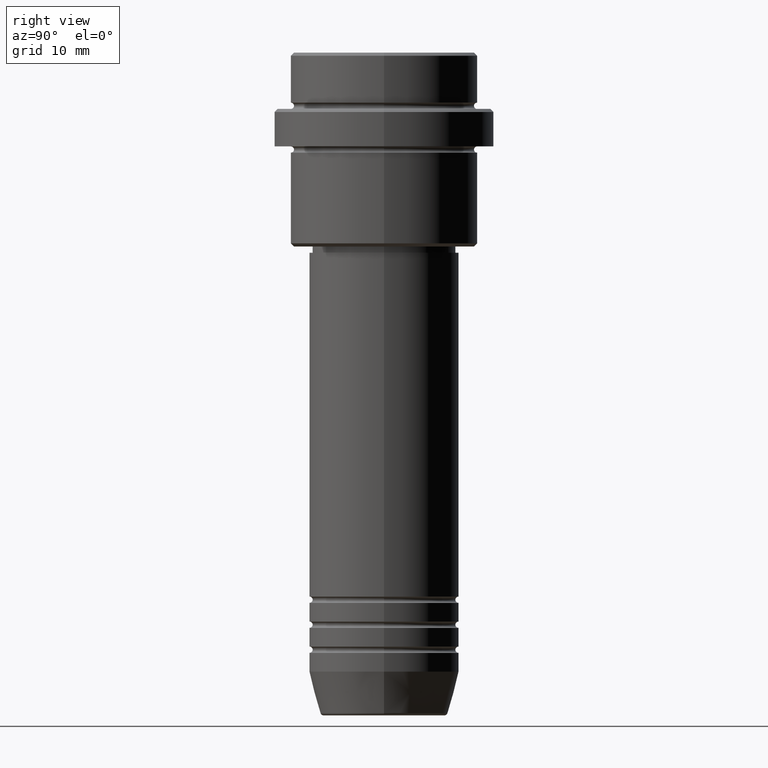
[diagram: clean part render]
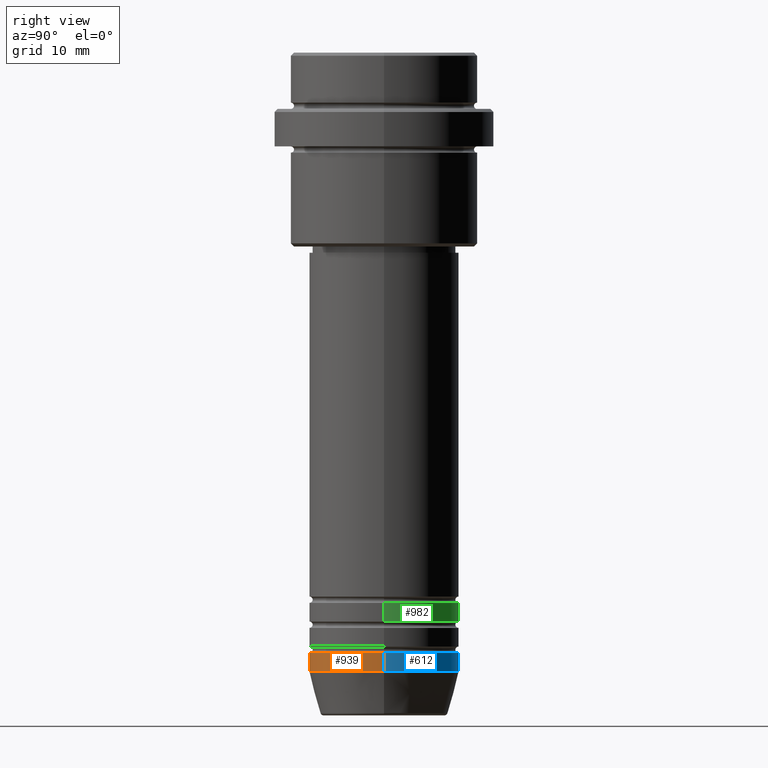
[diagram: same view with three faces highlighted in distinct colors, each labeled with its STEP entity id]
A machine part, right view with three faces highlighted in distinct colors.
Their STEP definitions:

[orange] entity #939 — the highlighted cylindrical surface (partial cylindrical patch) has radius 12 mm, axis along (-0, -0, 1).
#43 = VERTEX_POINT ( 'NONE', #300 ) ;
#52 = EDGE_CURVE ( 'NONE', #1115, #43, #1382, .T. ) ;
#61 = CARTESIAN_POINT ( 'NONE',  ( 12.00000000000000000, 0.000000000000000000, -96.00000000000000000 ) ) ;
#62 = DIRECTION ( 'NONE',  ( -0.000000000000000000, -0.000000000000000000, 1.000000000000000000 ) ) ;
#76 = CIRCLE ( 'NONE', #600, 12.00000000000000000 ) ;
#94 = DIRECTION ( 'NONE',  ( 1.000000000000000000, 0.000000000000000000, 0.000000000000000000 ) ) ;
#97 = CYLINDRICAL_SURFACE ( 'NONE', #147, 12.00000000000000000 ) ;
#137 = CARTESIAN_POINT ( 'NONE',  ( -12.00000000000000000, 1.469576158976823947E-15, -99.00000000000000000 ) ) ;
#147 = AXIS2_PLACEMENT_3D ( 'NONE', #417, #651, #1072 ) ;
#215 = ORIENTED_EDGE ( 'NONE', *, *, #440, .T. ) ;
#264 = ORIENTED_EDGE ( 'NONE', *, *, #1365, .F. ) ;
#288 = CARTESIAN_POINT ( 'NONE',  ( -12.00000000000000000, 1.469576158976823947E-15, -96.00000000000000000 ) ) ;
#300 = CARTESIAN_POINT ( 'NONE',  ( 12.00000000000000000, 0.000000000000000000, -99.00000000000000000 ) ) ;
#417 = CARTESIAN_POINT ( 'NONE',  ( 0.000000000000000000, 0.000000000000000000, 0.000000000000000000 ) ) ;
#440 = EDGE_CURVE ( 'NONE', #43, #830, #752, .T. ) ;
#443 = AXIS2_PLACEMENT_3D ( 'NONE', #1388, #62, #94 ) ;
#528 = FACE_OUTER_BOUND ( 'NONE', #815, .T. ) ;
#549 = DIRECTION ( 'NONE',  ( 1.000000000000000000, 0.000000000000000000, 0.000000000000000000 ) ) ;
#600 = AXIS2_PLACEMENT_3D ( 'NONE', #961, #1051, #549 ) ;
#651 = DIRECTION ( 'NONE',  ( -0.000000000000000000, -0.000000000000000000, 1.000000000000000000 ) ) ;
#656 = CARTESIAN_POINT ( 'NONE',  ( 12.00000000000000000, 0.000000000000000000, 0.000000000000000000 ) ) ;
#752 = LINE ( 'NONE', #656, #1384 ) ;
#753 = VERTEX_POINT ( 'NONE', #288 ) ;
#754 = ORIENTED_EDGE ( 'NONE', *, *, #52, .T. ) ;
#755 = LINE ( 'NONE', #869, #1012 ) ;
#815 = EDGE_LOOP ( 'NONE', ( #264, #754, #215, #1263 ) ) ;
#830 = VERTEX_POINT ( 'NONE', #61 ) ;
#869 = CARTESIAN_POINT ( 'NONE',  ( -12.00000000000000000, 1.469576158976823947E-15, 0.000000000000000000 ) ) ;
#939 = ADVANCED_FACE ( 'NONE', ( #528 ), #97, .T. ) ;
#958 = DIRECTION ( 'NONE',  ( -0.000000000000000000, -0.000000000000000000, 1.000000000000000000 ) ) ;
#961 = CARTESIAN_POINT ( 'NONE',  ( 0.000000000000000000, 0.000000000000000000, -96.00000000000000000 ) ) ;
#1012 = VECTOR ( 'NONE', #1071, 1000.000000000000000 ) ;
#1051 = DIRECTION ( 'NONE',  ( -0.000000000000000000, -0.000000000000000000, 1.000000000000000000 ) ) ;
#1071 = DIRECTION ( 'NONE',  ( -0.000000000000000000, -0.000000000000000000, 1.000000000000000000 ) ) ;
#1072 = DIRECTION ( 'NONE',  ( 1.000000000000000000, 0.000000000000000000, 0.000000000000000000 ) ) ;
#1115 = VERTEX_POINT ( 'NONE', #137 ) ;
#1263 = ORIENTED_EDGE ( 'NONE', *, *, #1362, .F. ) ;
#1362 = EDGE_CURVE ( 'NONE', #753, #830, #76, .T. ) ;
#1365 = EDGE_CURVE ( 'NONE', #1115, #753, #755, .T. ) ;
#1382 = CIRCLE ( 'NONE', #443, 12.00000000000000000 ) ;
#1384 = VECTOR ( 'NONE', #958, 1000.000000000000000 ) ;
#1388 = CARTESIAN_POINT ( 'NONE',  ( 0.000000000000000000, 0.000000000000000000, -99.00000000000000000 ) ) ;

[blue] entity #612 — the highlighted cylindrical surface (partial cylindrical patch) has radius 12 mm, axis along (-0, -0, 1).
#37 = DIRECTION ( 'NONE',  ( -0.000000000000000000, -0.000000000000000000, 1.000000000000000000 ) ) ;
#43 = VERTEX_POINT ( 'NONE', #300 ) ;
#61 = CARTESIAN_POINT ( 'NONE',  ( 12.00000000000000000, 0.000000000000000000, -96.00000000000000000 ) ) ;
#127 = FACE_OUTER_BOUND ( 'NONE', #399, .T. ) ;
#137 = CARTESIAN_POINT ( 'NONE',  ( -12.00000000000000000, 1.469576158976823947E-15, -99.00000000000000000 ) ) ;
#261 = CARTESIAN_POINT ( 'NONE',  ( 0.000000000000000000, 0.000000000000000000, 0.000000000000000000 ) ) ;
#265 = CARTESIAN_POINT ( 'NONE',  ( 0.000000000000000000, 0.000000000000000000, -99.00000000000000000 ) ) ;
#288 = CARTESIAN_POINT ( 'NONE',  ( -12.00000000000000000, 1.469576158976823947E-15, -96.00000000000000000 ) ) ;
#291 = DIRECTION ( 'NONE',  ( -0.000000000000000000, -0.000000000000000000, 1.000000000000000000 ) ) ;
#300 = CARTESIAN_POINT ( 'NONE',  ( 12.00000000000000000, 0.000000000000000000, -99.00000000000000000 ) ) ;
#379 = AXIS2_PLACEMENT_3D ( 'NONE', #265, #918, #831 ) ;
#399 = EDGE_LOOP ( 'NONE', ( #909, #1265, #473, #952 ) ) ;
#440 = EDGE_CURVE ( 'NONE', #43, #830, #752, .T. ) ;
#473 = ORIENTED_EDGE ( 'NONE', *, *, #1210, .F. ) ;
#505 = CARTESIAN_POINT ( 'NONE',  ( 0.000000000000000000, 0.000000000000000000, -96.00000000000000000 ) ) ;
#612 = ADVANCED_FACE ( 'NONE', ( #127 ), #697, .T. ) ;
#620 = AXIS2_PLACEMENT_3D ( 'NONE', #505, #291, #934 ) ;
#656 = CARTESIAN_POINT ( 'NONE',  ( 12.00000000000000000, 0.000000000000000000, 0.000000000000000000 ) ) ;
#697 = CYLINDRICAL_SURFACE ( 'NONE', #1387, 12.00000000000000000 ) ;
#752 = LINE ( 'NONE', #656, #1384 ) ;
#753 = VERTEX_POINT ( 'NONE', #288 ) ;
#755 = LINE ( 'NONE', #869, #1012 ) ;
#830 = VERTEX_POINT ( 'NONE', #61 ) ;
#831 = DIRECTION ( 'NONE',  ( 1.000000000000000000, 0.000000000000000000, 0.000000000000000000 ) ) ;
#869 = CARTESIAN_POINT ( 'NONE',  ( -12.00000000000000000, 1.469576158976823947E-15, 0.000000000000000000 ) ) ;
#909 = ORIENTED_EDGE ( 'NONE', *, *, #1147, .T. ) ;
#918 = DIRECTION ( 'NONE',  ( -0.000000000000000000, -0.000000000000000000, 1.000000000000000000 ) ) ;
#934 = DIRECTION ( 'NONE',  ( 1.000000000000000000, 0.000000000000000000, 0.000000000000000000 ) ) ;
#952 = ORIENTED_EDGE ( 'NONE', *, *, #440, .F. ) ;
#958 = DIRECTION ( 'NONE',  ( -0.000000000000000000, -0.000000000000000000, 1.000000000000000000 ) ) ;
#979 = CIRCLE ( 'NONE', #379, 12.00000000000000000 ) ;
#1007 = DIRECTION ( 'NONE',  ( 1.000000000000000000, 0.000000000000000000, 0.000000000000000000 ) ) ;
#1012 = VECTOR ( 'NONE', #1071, 1000.000000000000000 ) ;
#1071 = DIRECTION ( 'NONE',  ( -0.000000000000000000, -0.000000000000000000, 1.000000000000000000 ) ) ;
#1115 = VERTEX_POINT ( 'NONE', #137 ) ;
#1147 = EDGE_CURVE ( 'NONE', #43, #1115, #979, .T. ) ;
#1210 = EDGE_CURVE ( 'NONE', #830, #753, #1405, .T. ) ;
#1265 = ORIENTED_EDGE ( 'NONE', *, *, #1365, .T. ) ;
#1365 = EDGE_CURVE ( 'NONE', #1115, #753, #755, .T. ) ;
#1384 = VECTOR ( 'NONE', #958, 1000.000000000000000 ) ;
#1387 = AXIS2_PLACEMENT_3D ( 'NONE', #261, #37, #1007 ) ;
#1405 = CIRCLE ( 'NONE', #620, 12.00000000000000000 ) ;

[green] entity #982 — the highlighted cylindrical surface (partial cylindrical patch) has radius 12 mm, axis along (-0, -0, 1).
#13 = DIRECTION ( 'NONE',  ( -0.000000000000000000, -0.000000000000000000, 1.000000000000000000 ) ) ;
#42 = AXIS2_PLACEMENT_3D ( 'NONE', #113, #574, #232 ) ;
#69 = CARTESIAN_POINT ( 'NONE',  ( -12.00000000000000000, 1.469576158976823947E-15, -90.99999999999988631 ) ) ;
#113 = CARTESIAN_POINT ( 'NONE',  ( 0.000000000000000000, 0.000000000000000000, 0.000000000000000000 ) ) ;
#146 = VERTEX_POINT ( 'NONE', #1186 ) ;
#183 = CARTESIAN_POINT ( 'NONE',  ( 12.00000000000000000, 0.000000000000000000, -87.99999999999988631 ) ) ;
#216 = EDGE_LOOP ( 'NONE', ( #465, #1074, #1367, #408 ) ) ;
#232 = DIRECTION ( 'NONE',  ( 1.000000000000000000, 0.000000000000000000, 0.000000000000000000 ) ) ;
#321 = CARTESIAN_POINT ( 'NONE',  ( 0.000000000000000000, 0.000000000000000000, -90.99999999999988631 ) ) ;
#408 = ORIENTED_EDGE ( 'NONE', *, *, #728, .F. ) ;
#422 = CIRCLE ( 'NONE', #1199, 12.00000000000000000 ) ;
#455 = EDGE_CURVE ( 'NONE', #146, #1389, #422, .T. ) ;
#465 = ORIENTED_EDGE ( 'NONE', *, *, #455, .T. ) ;
#545 = CARTESIAN_POINT ( 'NONE',  ( -12.00000000000000000, 1.469576158976823947E-15, -87.99999999999988631 ) ) ;
#574 = DIRECTION ( 'NONE',  ( -0.000000000000000000, -0.000000000000000000, 1.000000000000000000 ) ) ;
#640 = CIRCLE ( 'NONE', #1224, 12.00000000000000000 ) ;
#655 = LINE ( 'NONE', #756, #1157 ) ;
#728 = EDGE_CURVE ( 'NONE', #146, #1310, #1355, .T. ) ;
#731 = CARTESIAN_POINT ( 'NONE',  ( 12.00000000000000000, 0.000000000000000000, 0.000000000000000000 ) ) ;
#756 = CARTESIAN_POINT ( 'NONE',  ( -12.00000000000000000, 1.469576158976823947E-15, 0.000000000000000000 ) ) ;
#758 = DIRECTION ( 'NONE',  ( 1.000000000000000000, 0.000000000000000000, 0.000000000000000000 ) ) ;
#802 = VECTOR ( 'NONE', #1022, 1000.000000000000000 ) ;
#892 = DIRECTION ( 'NONE',  ( 1.000000000000000000, 0.000000000000000000, 0.000000000000000000 ) ) ;
#903 = EDGE_CURVE ( 'NONE', #1389, #1392, #655, .T. ) ;
#973 = CYLINDRICAL_SURFACE ( 'NONE', #42, 12.00000000000000000 ) ;
#982 = ADVANCED_FACE ( 'NONE', ( #1183 ), #973, .T. ) ;
#1022 = DIRECTION ( 'NONE',  ( -0.000000000000000000, -0.000000000000000000, 1.000000000000000000 ) ) ;
#1046 = EDGE_CURVE ( 'NONE', #1310, #1392, #640, .T. ) ;
#1054 = DIRECTION ( 'NONE',  ( -0.000000000000000000, -0.000000000000000000, 1.000000000000000000 ) ) ;
#1074 = ORIENTED_EDGE ( 'NONE', *, *, #903, .T. ) ;
#1157 = VECTOR ( 'NONE', #1393, 1000.000000000000000 ) ;
#1183 = FACE_OUTER_BOUND ( 'NONE', #216, .T. ) ;
#1186 = CARTESIAN_POINT ( 'NONE',  ( 12.00000000000000000, 0.000000000000000000, -90.99999999999988631 ) ) ;
#1199 = AXIS2_PLACEMENT_3D ( 'NONE', #321, #1054, #758 ) ;
#1224 = AXIS2_PLACEMENT_3D ( 'NONE', #1416, #13, #892 ) ;
#1310 = VERTEX_POINT ( 'NONE', #183 ) ;
#1355 = LINE ( 'NONE', #731, #802 ) ;
#1367 = ORIENTED_EDGE ( 'NONE', *, *, #1046, .F. ) ;
#1389 = VERTEX_POINT ( 'NONE', #69 ) ;
#1392 = VERTEX_POINT ( 'NONE', #545 ) ;
#1393 = DIRECTION ( 'NONE',  ( -0.000000000000000000, -0.000000000000000000, 1.000000000000000000 ) ) ;
#1416 = CARTESIAN_POINT ( 'NONE',  ( 0.000000000000000000, 0.000000000000000000, -87.99999999999988631 ) ) ;